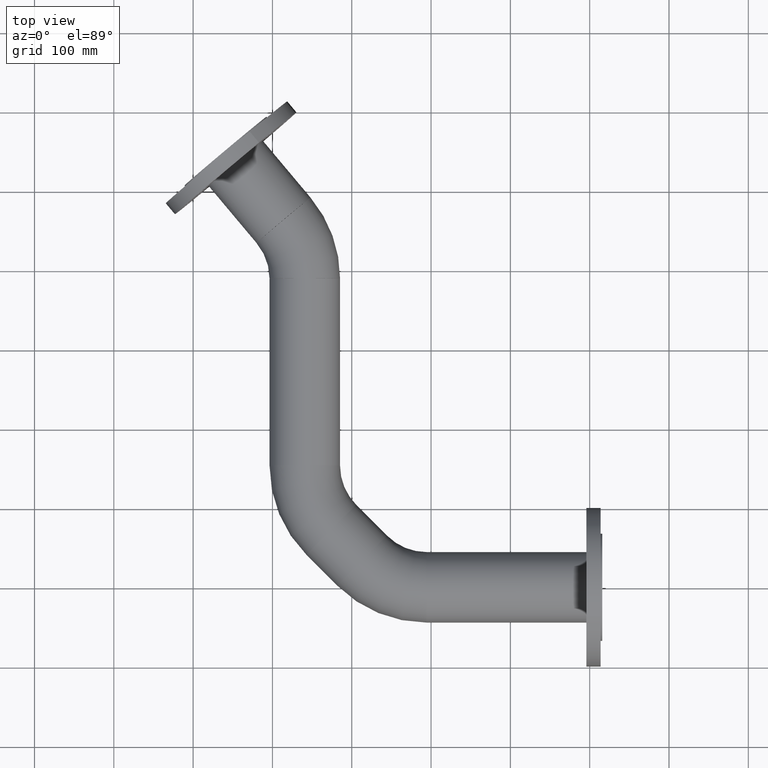
[diagram: clean part render]
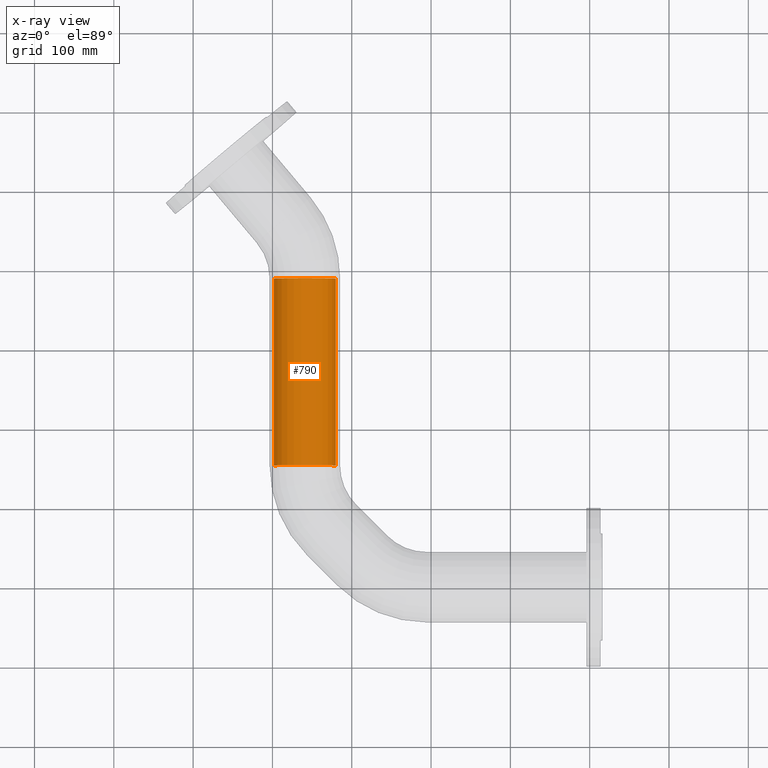
[diagram: x-ray — body ghosted, one internal face saturated and labeled with its STEP entity id]
A machine part, top view, then the same camera in x-ray: the body is ghosted and one INTERNAL B-rep face — a face not visible from any outside direction — is saturated and labeled: STEP entity #790.
In plain terms, the highlighted cylindrical surface (edge-blend (fillet) strip) has radius 38.95 mm, axis along (-0, -1, -0).
Its self-contained STEP definition (entity closure, byte-faithful):
#42 = ORIENTED_EDGE ( 'NONE', *, *, #2246, .T. ) ;
#62 = EDGE_CURVE ( 'NONE', #1240, #2090, #1580, .T. ) ;
#93 = DIRECTION ( 'NONE',  ( -1.000000000000000000, 0.000000000000000000, 0.000000000000000000 ) ) ;
#156 = VERTEX_POINT ( 'NONE', #1094 ) ;
#178 = DIRECTION ( 'NONE',  ( 2.220446049250312588E-16, 1.000000000000000000, 0.000000000000000000 ) ) ;
#228 = EDGE_CURVE ( 'NONE', #1240, #588, #1834, .T. ) ;
#254 = ORIENTED_EDGE ( 'NONE', *, *, #926, .F. ) ;
#410 = DIRECTION ( 'NONE',  ( -2.354570124668123057E-16, -1.000000000000000000, -0.000000000000000000 ) ) ;
#431 = CARTESIAN_POINT ( 'NONE',  ( -298.1454364826298047, 153.3908729652592058, 4.769999282678941594E-15 ) ) ;
#571 = CARTESIAN_POINT ( 'NONE',  ( -220.2454364826296853, 389.1500489170994115, 0.000000000000000000 ) ) ;
#588 = VERTEX_POINT ( 'NONE', #431 ) ;
#664 = CARTESIAN_POINT ( 'NONE',  ( -298.1454364826297478, 389.1500489170994115, 4.769999282678941594E-15 ) ) ;
#691 = CARTESIAN_POINT ( 'NONE',  ( -298.1454364826297478, 389.1500489170994115, 4.769999282678943171E-15 ) ) ;
#708 = DIRECTION ( 'NONE',  ( -1.000000000000000000, 0.000000000000000000, 0.000000000000000000 ) ) ;
#771 = LINE ( 'NONE', #2275, #1873 ) ;
#790 = ADVANCED_FACE ( 'NONE', ( #1995 ), #1273, .F. ) ;
#801 = CARTESIAN_POINT ( 'NONE',  ( -259.1954364826297024, 389.1500489170994115, 0.000000000000000000 ) ) ;
#926 = EDGE_CURVE ( 'NONE', #588, #156, #1688, .T. ) ;
#1021 = ORIENTED_EDGE ( 'NONE', *, *, #62, .T. ) ;
#1032 = EDGE_LOOP ( 'NONE', ( #2110, #1021, #42, #254 ) ) ;
#1079 = CARTESIAN_POINT ( 'NONE',  ( -259.1954364826297024, 389.1500489170994115, 0.000000000000000000 ) ) ;
#1094 = CARTESIAN_POINT ( 'NONE',  ( -220.2454364826297422, 153.3908729652592058, 0.000000000000000000 ) ) ;
#1240 = VERTEX_POINT ( 'NONE', #664 ) ;
#1273 = CYLINDRICAL_SURFACE ( 'NONE', #1784, 38.95000000000003837 ) ;
#1299 = DIRECTION ( 'NONE',  ( -2.354570124668123057E-16, -1.000000000000000000, -0.000000000000000000 ) ) ;
#1346 = DIRECTION ( 'NONE',  ( 2.220446049250312588E-16, 1.000000000000000000, 0.000000000000000000 ) ) ;
#1356 = VECTOR ( 'NONE', #1299, 1000.000000000000000 ) ;
#1570 = CARTESIAN_POINT ( 'NONE',  ( -259.1954364826297592, 153.3908729652592058, 0.000000000000000000 ) ) ;
#1580 = CIRCLE ( 'NONE', #1662, 38.95000000000003837 ) ;
#1605 = AXIS2_PLACEMENT_3D ( 'NONE', #1570, #178, #708 ) ;
#1662 = AXIS2_PLACEMENT_3D ( 'NONE', #801, #1346, #93 ) ;
#1688 = CIRCLE ( 'NONE', #1605, 38.95000000000003837 ) ;
#1784 = AXIS2_PLACEMENT_3D ( 'NONE', #1079, #1816, #1830 ) ;
#1816 = DIRECTION ( 'NONE',  ( -2.354570124668123057E-16, -1.000000000000000000, -0.000000000000000000 ) ) ;
#1830 = DIRECTION ( 'NONE',  ( 1.000000000000000000, 0.000000000000000000, 0.000000000000000000 ) ) ;
#1834 = LINE ( 'NONE', #691, #1356 ) ;
#1873 = VECTOR ( 'NONE', #410, 1000.000000000000000 ) ;
#1995 = FACE_OUTER_BOUND ( 'NONE', #1032, .T. ) ;
#2090 = VERTEX_POINT ( 'NONE', #571 ) ;
#2110 = ORIENTED_EDGE ( 'NONE', *, *, #228, .F. ) ;
#2246 = EDGE_CURVE ( 'NONE', #2090, #156, #771, .T. ) ;
#2275 = CARTESIAN_POINT ( 'NONE',  ( -220.2454364826296853, 389.1500489170994115, 0.000000000000000000 ) ) ;